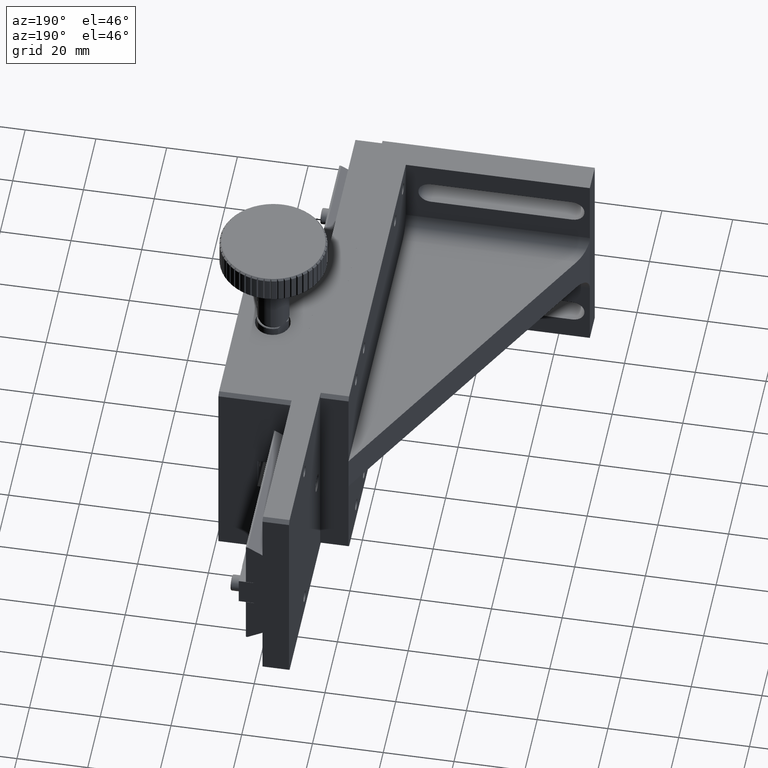
[diagram: clean part render]
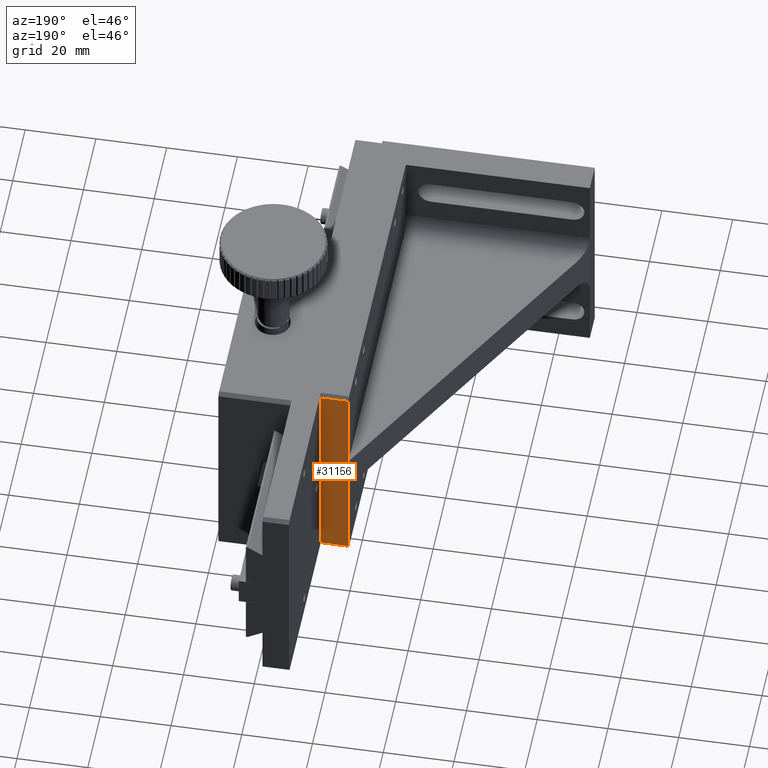
[diagram: same view with one face highlighted and labeled with its STEP entity id]
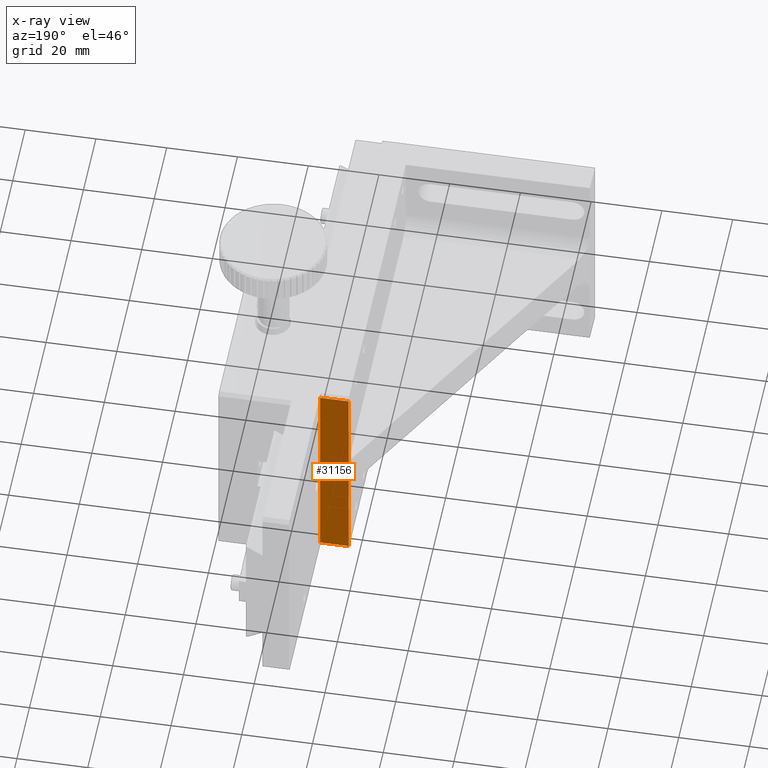
[diagram: x-ray of the same camera — body ghosted, the highlighted face saturated]
A machine part, auxiliary view. The second image highlights one B-rep face of the part: STEP entity #31156.
The next image is the same camera in x-ray: the body ghosted, the highlighted face saturated — about 0% of this face is hidden behind the body in this view.
In plain terms, the highlighted planar face has unit normal (0, 1, 0).
Its self-contained STEP definition (entity closure, byte-faithful):
#499 = VERTEX_POINT ( 'NONE', #103138 ) ;
#1914 = ORIENTED_EDGE ( 'NONE', *, *, #102860, .T. ) ;
#6600 = ORIENTED_EDGE ( 'NONE', *, *, #36598, .T. ) ;
#7637 = VERTEX_POINT ( 'NONE', #8293 ) ;
#7958 = DIRECTION ( 'NONE',  ( 1.000000000000000000, 0.000000000000000000, -0.000000000000000000 ) ) ;
#8293 = CARTESIAN_POINT ( 'NONE',  ( 41.13262096468576345, 155.8153669698312171, 97.77940562822321624 ) ) ;
#13724 = ORIENTED_EDGE ( 'NONE', *, *, #24238, .T. ) ;
#17288 = DIRECTION ( 'NONE',  ( 0.000000000000000000, -0.000000000000000000, 1.000000000000000000 ) ) ;
#17298 = VECTOR ( 'NONE', #28617, 1000.000000000000000 ) ;
#20003 = CARTESIAN_POINT ( 'NONE',  ( 49.13262096468595530, 155.8153669698312456, 122.7794056282231310 ) ) ;
#20363 = ORIENTED_EDGE ( 'NONE', *, *, #97067, .T. ) ;
#20540 = VERTEX_POINT ( 'NONE', #28659 ) ;
#24238 = EDGE_CURVE ( 'NONE', #96398, #104102, #26958, .T. ) ;
#26807 = CARTESIAN_POINT ( 'NONE',  ( 41.13262096468555029, 155.8153669698312456, 63.77940562822316650 ) ) ;
#26958 = LINE ( 'NONE', #59854, #50993 ) ;
#28617 = DIRECTION ( 'NONE',  ( -6.982962677686266711E-15, -0.000000000000000000, -1.000000000000000000 ) ) ;
#28659 = CARTESIAN_POINT ( 'NONE',  ( 49.13262096468595530, 155.8153669698312456, 121.7794056282231594 ) ) ;
#29470 = DIRECTION ( 'NONE',  ( 0.000000000000000000, -0.000000000000000000, 1.000000000000000000 ) ) ;
#29740 = CARTESIAN_POINT ( 'NONE',  ( 19.13262096468574924, 155.8153669698312456, 92.77940562822334414 ) ) ;
#29987 = LINE ( 'NONE', #37558, #58473 ) ;
#31156 = ADVANCED_FACE ( 'NONE', ( #103628 ), #38359, .T. ) ;
#36598 = EDGE_CURVE ( 'NONE', #499, #96398, #53807, .T. ) ;
#37243 = LINE ( 'NONE', #20003, #17298 ) ;
#37558 = CARTESIAN_POINT ( 'NONE',  ( 41.13262096468571372, 155.8153669698312456, 92.77940562822334414 ) ) ;
#38359 = PLANE ( 'NONE',  #41095 ) ;
#41095 = AXIS2_PLACEMENT_3D ( 'NONE', #29740, #62645, #102560 ) ;
#41999 = CARTESIAN_POINT ( 'NONE',  ( 41.13262096468567108, 155.8153669698312456, 87.77940562822337256 ) ) ;
#42238 = LINE ( 'NONE', #90804, #62205 ) ;
#50993 = VECTOR ( 'NONE', #17288, 1000.000000000000000 ) ;
#53807 = LINE ( 'NONE', #62426, #65014 ) ;
#58473 = VECTOR ( 'NONE', #29470, 1000.000000000000000 ) ;
#59854 = CARTESIAN_POINT ( 'NONE',  ( 41.13262096468555029, 155.8153669698312456, 92.77940562822334414 ) ) ;
#62205 = VECTOR ( 'NONE', #91336, 1000.000000000000000 ) ;
#62426 = CARTESIAN_POINT ( 'NONE',  ( 19.13262096468574924, 155.8153669698312456, 63.77940562822312387 ) ) ;
#62645 = DIRECTION ( 'NONE',  ( 0.000000000000000000, 1.000000000000000000, 0.000000000000000000 ) ) ;
#65014 = VECTOR ( 'NONE', #85138, 1000.000000000000000 ) ;
#72516 = EDGE_LOOP ( 'NONE', ( #98270, #82108, #1914, #6600, #13724, #20363 ) ) ;
#79215 = EDGE_CURVE ( 'NONE', #7637, #104574, #42238, .T. ) ;
#80316 = LINE ( 'NONE', #97531, #94180 ) ;
#82108 = ORIENTED_EDGE ( 'NONE', *, *, #87351, .T. ) ;
#85138 = DIRECTION ( 'NONE',  ( -1.000000000000000000, -0.000000000000000000, 0.000000000000000000 ) ) ;
#87351 = EDGE_CURVE ( 'NONE', #104574, #20540, #80316, .T. ) ;
#90804 = CARTESIAN_POINT ( 'NONE',  ( 41.13262096468578477, 155.8153669698312456, 92.77940562822334414 ) ) ;
#91336 = DIRECTION ( 'NONE',  ( 0.000000000000000000, -0.000000000000000000, 1.000000000000000000 ) ) ;
#94180 = VECTOR ( 'NONE', #7958, 1000.000000000000000 ) ;
#96398 = VERTEX_POINT ( 'NONE', #26807 ) ;
#97067 = EDGE_CURVE ( 'NONE', #104102, #7637, #29987, .T. ) ;
#97531 = CARTESIAN_POINT ( 'NONE',  ( 19.13262096468574924, 155.8153669698312456, 121.7794056282232020 ) ) ;
#98270 = ORIENTED_EDGE ( 'NONE', *, *, #79215, .T. ) ;
#102560 = DIRECTION ( 'NONE',  ( 0.000000000000000000, -0.000000000000000000, 1.000000000000000000 ) ) ;
#102860 = EDGE_CURVE ( 'NONE', #20540, #499, #37243, .T. ) ;
#102868 = CARTESIAN_POINT ( 'NONE',  ( 41.13262096468591267, 155.8153669698312740, 121.7794056282232020 ) ) ;
#103138 = CARTESIAN_POINT ( 'NONE',  ( 49.13262096468564977, 155.8153669698312740, 63.77940562822312387 ) ) ;
#103628 = FACE_OUTER_BOUND ( 'NONE', #72516, .T. ) ;
#104102 = VERTEX_POINT ( 'NONE', #41999 ) ;
#104574 = VERTEX_POINT ( 'NONE', #102868 ) ;